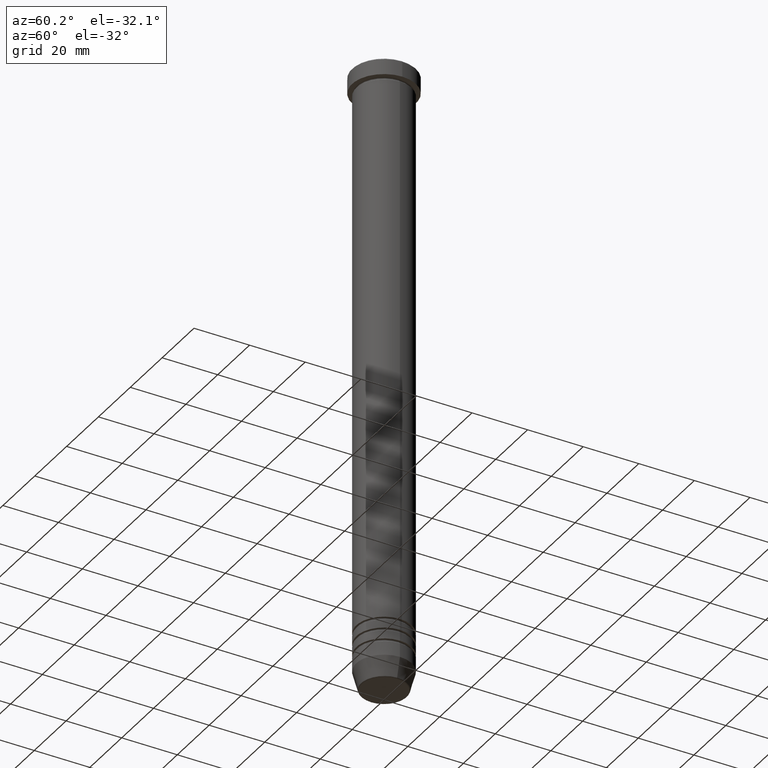
[diagram: clean part render]
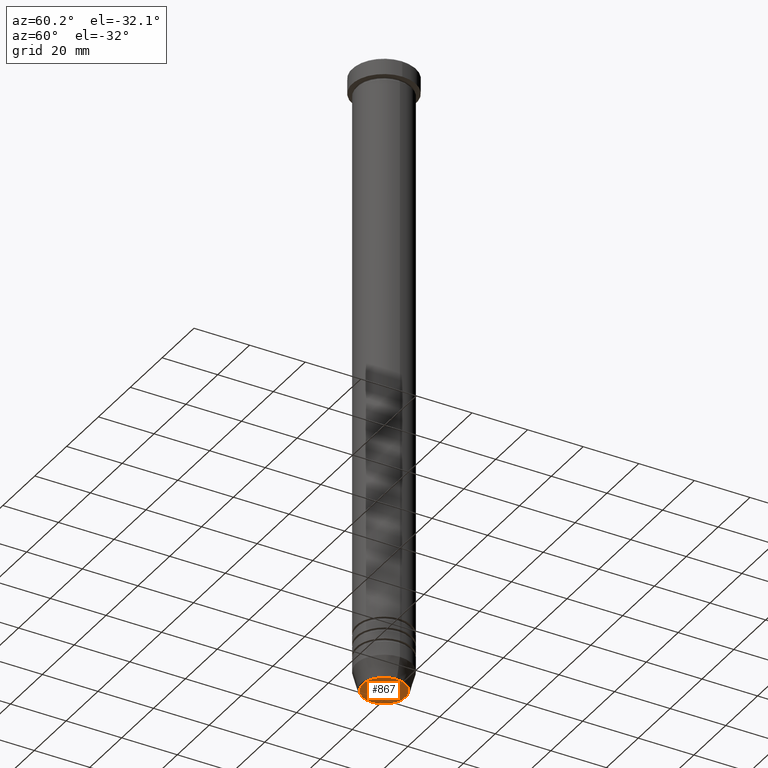
[diagram: same view with one face highlighted and labeled with its STEP entity id]
A machine part, auxiliary view. The second image highlights one B-rep face of the part: STEP entity #867.
In plain terms, the highlighted planar face has unit normal (0, -0, 1).
Its self-contained STEP definition (entity closure, byte-faithful):
#26 = CARTESIAN_POINT ( 'NONE',  ( 0.000000000000000000, 0.000000000000000000, -225.9999999999999716 ) ) ;
#63 = DIRECTION ( 'NONE',  ( 0.000000000000000000, 0.000000000000000000, -1.000000000000000000 ) ) ;
#123 = ORIENTED_EDGE ( 'NONE', *, *, #1070, .T. ) ;
#130 = CARTESIAN_POINT ( 'NONE',  ( -7.740692158992657390, 9.775343368540041107E-16, -225.9999999999999716 ) ) ;
#131 = CIRCLE ( 'NONE', #781, 7.740692158992657390 ) ;
#191 = CARTESIAN_POINT ( 'NONE',  ( 7.740692158992657390, 0.000000000000000000, -225.9999999999999716 ) ) ;
#258 = DIRECTION ( 'NONE',  ( 1.000000000000000000, 0.000000000000000000, 0.000000000000000000 ) ) ;
#327 = CARTESIAN_POINT ( 'NONE',  ( 0.000000000000000000, 0.000000000000000000, -225.9999999999999716 ) ) ;
#338 = AXIS2_PLACEMENT_3D ( 'NONE', #941, #1063, #258 ) ;
#405 = FACE_OUTER_BOUND ( 'NONE', #553, .T. ) ;
#479 = DIRECTION ( 'NONE',  ( 1.000000000000000000, 0.000000000000000000, 0.000000000000000000 ) ) ;
#533 = VERTEX_POINT ( 'NONE', #191 ) ;
#553 = EDGE_LOOP ( 'NONE', ( #998, #123 ) ) ;
#576 = EDGE_CURVE ( 'NONE', #533, #807, #131, .T. ) ;
#605 = CIRCLE ( 'NONE', #844, 7.740692158992657390 ) ;
#762 = PLANE ( 'NONE',  #338 ) ;
#781 = AXIS2_PLACEMENT_3D ( 'NONE', #327, #63, #871 ) ;
#807 = VERTEX_POINT ( 'NONE', #130 ) ;
#822 = DIRECTION ( 'NONE',  ( 0.000000000000000000, 0.000000000000000000, -1.000000000000000000 ) ) ;
#844 = AXIS2_PLACEMENT_3D ( 'NONE', #26, #822, #479 ) ;
#867 = ADVANCED_FACE ( 'NONE', ( #405 ), #762, .F. ) ;
#871 = DIRECTION ( 'NONE',  ( 1.000000000000000000, 0.000000000000000000, 0.000000000000000000 ) ) ;
#941 = CARTESIAN_POINT ( 'NONE',  ( 0.000000000000000000, 2.039036920580342741E-14, -225.9999999999999716 ) ) ;
#998 = ORIENTED_EDGE ( 'NONE', *, *, #576, .T. ) ;
#1063 = DIRECTION ( 'NONE',  ( 0.000000000000000000, -0.000000000000000000, 1.000000000000000000 ) ) ;
#1070 = EDGE_CURVE ( 'NONE', #807, #533, #605, .T. ) ;